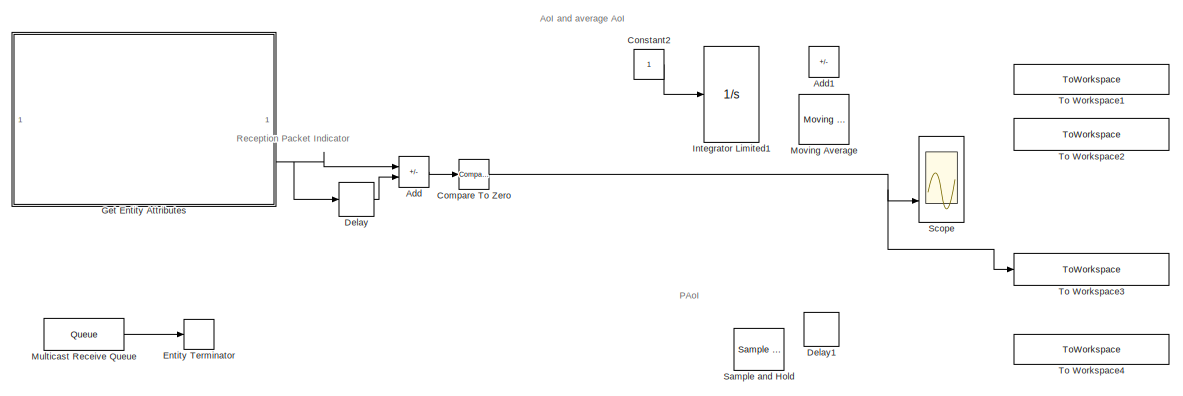
[diagram: root canvas - part 1/2, middle right region]
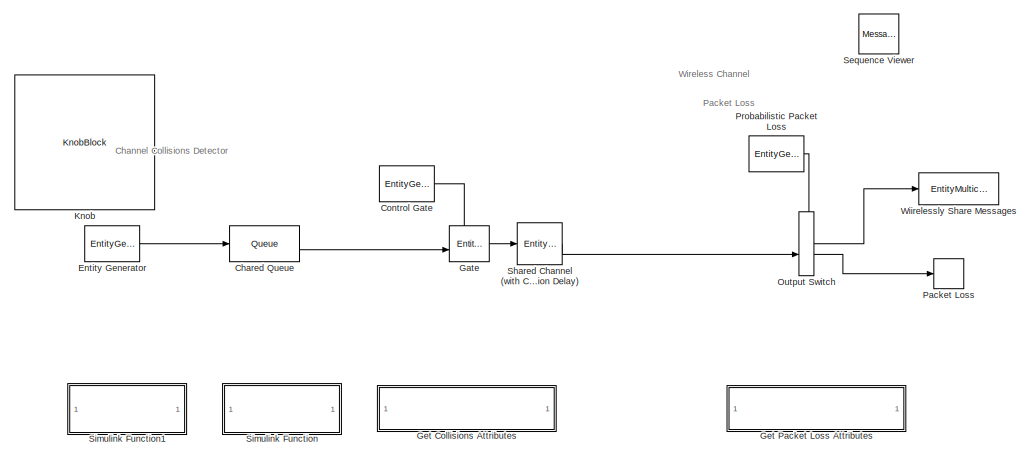
[diagram: root canvas - part 2/2, middle left region]
MODEL slx_b40120d1d837
KIND model
CONFIG AbsTol = auto
CONFIG EnableMultiTasking = off
CONFIG FixedStep = .001
CONFIG InitFcn = init_fcn
CONFIG MaxStep = auto
CONFIG MinStep = auto
CONFIG RelTol = 1e-3
CONFIG SampleTimeConstraint = Unconstrained
CONFIG SolverName = FixedStepAuto
CONFIG StartTime = 0.0
CONFIG StopFcn = stop_fcn
CONFIG StopTime = Inf
BLOCK [Sum] Add
  IconShape = rectangular
  Inputs = +-
BLOCK [Sum] Add1
  IconShape = rectangular
  Inputs = +-
BLOCK [Queue] Chared Queue
  Capacity = Inf
  InputPortMap = u0
  InputPortMessageModes = m
  OutputPortMap = o5
  OutputPortMessageModes = m
BLOCK [Reference] Compare To Zero  REF=simulink/Logic and Bit
Operations/Compare
To Zero
  SourceBlock = simulink/Logic and Bit\nOperations/Compare\nTo Zero
  SourceType = Compare To Zero
BLOCK [Constant] Constant2
BLOCK [EntityGenerator] Control Gate
  AttributeName = entity
  DataInitialValue = 1
  EntityTypeName = EntityGate
  GenerateAction = persistent gateControl;\nif isempty(gateControl)\n    gateControl = 1;\nend\nentity = gateControl;\ngateControl = 1-gateControl;\n\n%stamping each generated packet with the clock\ngetAttributeCollision(entity,timeStamp());
  IntergenerationTimeAction = % Current channel failure state \n% (true - failed, false - operational)\npersistent failure; \nif isempty(failure)\n    % Initial condition: channel is operational.\n    failure = false;\nend\n\nif failure\n    % Repair time is an uniformly distributed random\n    % variable between 1 and 2.\n    dt = randi([1 2],1,1);\nelse\n    % Duration between failures is a uniformly\n    % distributed random variable bet...<+91ch>
  OutputPortMap = o3
  OutputPortMessageModes = m
  Period = 0.2
  TimeSource = MATLAB action
BLOCK [Delay] Delay
  DelayLength = 1
  InputPortMap = u0
BLOCK [Delay] Delay1
  DelayLength = 1
  InputPortMap = u0
BLOCK [EntityGenerator] Entity Generator
  AttributeInitialValue = uint8(zeros(1,length(message)))|0|0|0|0
  AttributeName = Data|TimeStampGeneration|TimeStampServiceComplete|TotalTime|MessageID
  EntityType = Structured
  EntityTypeName = Entity
  GenerateAction = %stamping each generated packet with the clock\nentity.TimeStampGeneration = timeStamp();\n%stamping each generated packet with an ID\npersistent counter;\n\nif isempty(counter)\n    counter=1;\nend\n\nentity.MessageID=counter;\ncounter=counter+1;
  IntergenerationTimeAction = % dt = rand(1,1);\n%dt = randi([0 10],1,1);\n%dt=5;\ndt=1/EmissionRate();
  OutputPortMap = o3
  OutputPortMessageModes = m
  TimeSource = MATLAB action
BLOCK [EntityTerminator] Entity Terminator
  EntryAction = getAttribute(entity.Data',entity.MessageID,entity.TimeStampGeneration,timeStamp());
  InputPortMap = u0
  InputPortMessageModes = m
BLOCK [EntityGate] Gate
  InputPortMap = u0,u1
  InputPortMessageModes = m,m
  OpenGateAtSimulationStart = on
  OutputPortMap = o0
  OutputPortMessageModes = m
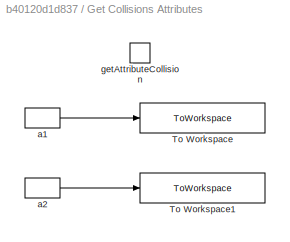
BLOCK [SubSystem] Get Collisions Attributes
  TreatAsAtomicUnit = on
BLOCK [ToWorkspace] Get Collisions Attributes/To Workspace
  FixptAsFi = on
  MaxDataPoints = inf
  SampleTime = -1
  SaveFormat = Timeseries
  VariableName = ControlGate
BLOCK [ToWorkspace] Get Collisions Attributes/To Workspace1
  FixptAsFi = on
  MaxDataPoints = inf
  SampleTime = -1
  SaveFormat = Timeseries
  VariableName = TimeStampGate
BLOCK [ArgIn] Get Collisions Attributes/a1
  ArgumentName = a1
BLOCK [ArgIn] Get Collisions Attributes/a2
  ArgumentName = a2
  Port = 2
BLOCK [TriggerPort] Get Collisions Attributes/getAttributeCollision
  FunctionName = getAttributeCollision
  IsSimulinkFunction = on
  StatesWhenEnabling = held
  TriggerType = function-call
  VariantControl = Variant
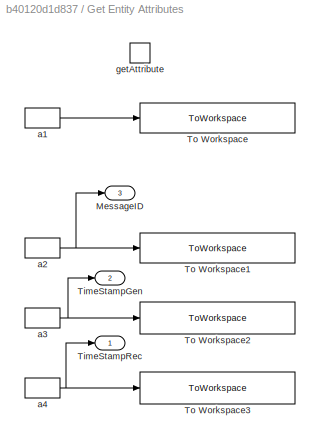
BLOCK [SubSystem] Get Entity Attributes
  NameLocation = top
  TreatAsAtomicUnit = on
BLOCK [Outport] Get Entity Attributes/MessageID
  Port = 3
BLOCK [Outport] Get Entity Attributes/TimeStampGen
  Port = 2
BLOCK [Outport] Get Entity Attributes/TimeStampRec
BLOCK [ToWorkspace] Get Entity Attributes/To Workspace
  FixptAsFi = on
  MaxDataPoints = inf
  SampleTime = -1
  SaveFormat = Timeseries
  VariableName = message_Rx
BLOCK [ToWorkspace] Get Entity Attributes/To Workspace1
  FixptAsFi = on
  MaxDataPoints = inf
  SampleTime = -1
  SaveFormat = Timeseries
  VariableName = MessageID
BLOCK [ToWorkspace] Get Entity Attributes/To Workspace2
  FixptAsFi = on
  MaxDataPoints = inf
  SampleTime = -1
  SaveFormat = Timeseries
  VariableName = TimeStampGeneration
BLOCK [ToWorkspace] Get Entity Attributes/To Workspace3
  FixptAsFi = on
  MaxDataPoints = inf
  SampleTime = -1
  SaveFormat = Timeseries
  VariableName = timeStampReceived
BLOCK [ArgIn] Get Entity Attributes/a1
  ArgumentName = a1
  OutDataTypeStr = uint8
  PortDimensions = 12
BLOCK [ArgIn] Get Entity Attributes/a2
  ArgumentName = a2
  Port = 2
BLOCK [ArgIn] Get Entity Attributes/a3
  ArgumentName = a3
  Port = 3
BLOCK [ArgIn] Get Entity Attributes/a4
  ArgumentName = a4
  Port = 4
BLOCK [TriggerPort] Get Entity Attributes/getAttribute
  FunctionName = getAttribute
  IsSimulinkFunction = on
  StatesWhenEnabling = held
  TriggerType = function-call
  VariantControl = Variant
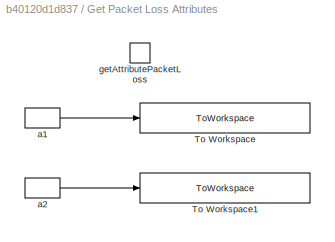
BLOCK [SubSystem] Get Packet Loss Attributes
  TreatAsAtomicUnit = on
BLOCK [ToWorkspace] Get Packet Loss Attributes/To Workspace
  FixptAsFi = on
  MaxDataPoints = inf
  SampleTime = -1
  SaveFormat = Timeseries
  VariableName = PacketLoss
BLOCK [ToWorkspace] Get Packet Loss Attributes/To Workspace1
  FixptAsFi = on
  MaxDataPoints = inf
  SampleTime = -1
  SaveFormat = Timeseries
  VariableName = TimeStampPacketLoss
BLOCK [ArgIn] Get Packet Loss Attributes/a1
  ArgumentName = a1
BLOCK [ArgIn] Get Packet Loss Attributes/a2
  ArgumentName = a2
  Port = 2
BLOCK [TriggerPort] Get Packet Loss Attributes/getAttributePacketLoss
  FunctionName = getAttributePacketLoss
  IsSimulinkFunction = on
  StatesWhenEnabling = held
  TriggerType = function-call
  VariantControl = Variant
BLOCK [Integrator] Integrator Limited1
  ExternalReset = rising
  InitialConditionSource = external
  LimitOutput = on
  LowerSaturationLimit = 0
  UpperSaturationLimit = 1000
BLOCK [KnobBlock] Knob
  ScaleMax = 0.999
  ScaleMin = 0.10000000000000001
BLOCK [Reference] Moving Average  REF=dspstat3/Moving
Average
  SourceBlock = dspstat3/Moving\nAverage
  SourceType = dsp.simulink.MovingAverage
BLOCK [Queue] Multicast Receive Queue
  EntityArrivalSource = Multicast
  MulticastTag = B
  OutputPortMap = o5
  OutputPortMessageModes = m
BLOCK [EntityOutputSwitch] Output Switch
  InputPortMap = u0,u1
  InputPortMessageModes = m,m
  OutputPortMap = o0,o1
  OutputPortMessageModes = m,m
  SwitchAttributeName = Attribute1
  SwitchingCriterion = From control port
BLOCK [EntityTerminator] Packet Loss
  InputPortMap = u0
  InputPortMessageModes = m
BLOCK [EntityGenerator] Probabilistic Packet Loss
  AttributeName = entity
  DataInitialValue = 1
  EntityTypeName = Entity
  GenerateAction = persistent rngInit;\n   if isempty(rngInit)\n       seed = 12345;\n       rng(seed);\n       rngInit = true;\n   end\n\n   % Pattern: Uniform distribution\n   % m: Minimum, M: Maximum\n   m = 0; M = 1;\n   x = m + (M - m) * rand;\n   % x is generated from uniform distribution and \n   % takes values between |0| and |1|.\n   if x > 0.1  \n      % Entity carries data |1| and this forces Output switch to select \n ...<+353ch>
  OutputPortMap = o3
  OutputPortMessageModes = m
BLOCK [Reference] Sample and Hold  REF=dspsigops/Sample
and Hold
  LibrarySourceBlock = dsphdlsupportsigops/Sample\nand Hold
  SourceBlock = dspsigops/Sample\nand Hold
  SourceType = Sample and Hold
BLOCK [Scope] Scope
  Floating = off
  NumInputPorts = 4
  ScopeSpecificationString = Simulink.scopes.TimeScopeBlockCfg('CurrentConfiguration', extmgr.ConfigurationSet(extmgr.Configuration('Core','General UI',true),extmgr.Configuration('Core','Source UI',true),extmgr.Configuration('Sources','WiredSimulink',true),extmgr.Configuration('Visuals','Time Domain',true,'SerializedDisplays',{struct('MinYLimReal','-6.58237','MaxYLimReal','69.23137','YLabelReal','','MinYLimMag','0.00000','Max...<+1551ch>
BLOCK [MessageViewer] Sequence Viewer
  History = 1000
  SavedRootId = #
BLOCK [EntityServer] Shared Channel (with Communication Delay)
  Capacity = 1
  InputPortMap = u2
  InputPortMessageModes = m
  OutputPortMap = o9
  OutputPortMessageModes = m
  ServiceTimeValue = 1
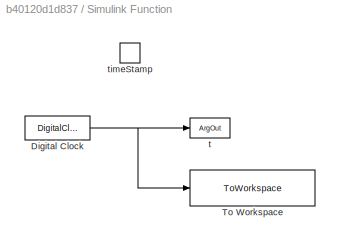
BLOCK [SubSystem] Simulink Function
  TreatAsAtomicUnit = on
BLOCK [DigitalClock] Simulink Function/Digital Clock
  SampleTime = -1
BLOCK [ToWorkspace] Simulink Function/To Workspace
  FixptAsFi = on
  MaxDataPoints = inf
  SampleTime = -1
  SaveFormat = Timeseries
  VariableName = SimulationClock
BLOCK [ArgOut] Simulink Function/t
  ArgumentName = t
  DisableCoverage = on
BLOCK [TriggerPort] Simulink Function/timeStamp
  FunctionName = timeStamp
  FunctionVisibility = scoped
  IsSimulinkFunction = on
  StatesWhenEnabling = held
  TriggerType = function-call
  VariantControl = (inherit)
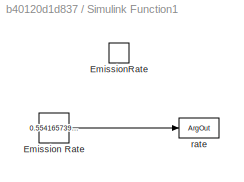
BLOCK [SubSystem] Simulink Function1
  TreatAsAtomicUnit = on
BLOCK [Constant] Simulink Function1/Emission Rate
  Value = 0.5541657390340169
BLOCK [TriggerPort] Simulink Function1/EmissionRate
  FunctionName = EmissionRate
  FunctionVisibility = scoped
  IsSimulinkFunction = on
  StatesWhenEnabling = held
  TriggerType = function-call
  VariantControl = (inherit)
BLOCK [ArgOut] Simulink Function1/rate
  ArgumentName = rate
  DisableCoverage = on
BLOCK [ToWorkspace] To Workspace1
  FixptAsFi = on
  MaxDataPoints = inf
  SampleTime = -1
  SaveFormat = Timeseries
  VariableName = AoI
BLOCK [ToWorkspace] To Workspace2
  FixptAsFi = on
  MaxDataPoints = inf
  SampleTime = -1
  SaveFormat = Timeseries
  VariableName = averageAoI
BLOCK [ToWorkspace] To Workspace3
  FixptAsFi = on
  MaxDataPoints = inf
  SampleTime = -1
  SaveFormat = Timeseries
  VariableName = packetIndicator
BLOCK [ToWorkspace] To Workspace4
  FixptAsFi = on
  MaxDataPoints = inf
  SampleTime = -1
  SaveFormat = Timeseries
  VariableName = PAoI
BLOCK [EntityMulticast] Wiirelessly Share Messages
  InputPortMessageModes = m
  MulticastTag = B
ANNOTATION (root): AoI and average AoI
ANNOTATION (root): Channel Collisions Detector
ANNOTATION (root): PAoI
ANNOTATION (root): Packet Loss
ANNOTATION (root): Reception Packet Indicator
ANNOTATION (root): Wireless Channel
LINE Add:1 -> Compare To Zero:1
LINE Chared Queue:1 -> Gate:2
NET Compare To Zero:1 -> Scope:3, To Workspace3:1
LINE Constant2:1 -> Integrator Limited1:1
LINE Control Gate:1 -> Gate:1
LINE Delay:1 -> Add:2
LINE Entity Generator:1 -> Chared Queue:1
LINE Gate:1 -> Shared Channel (with Communication Delay):1
LINE Get Collisions Attributes/a1:1 -> Get Collisions Attributes/To Workspace:1
LINE Get Collisions Attributes/a2:1 -> Get Collisions Attributes/To Workspace1:1
LINE Get Entity Attributes/a1:1 -> Get Entity Attributes/To Workspace:1
NET Get Entity Attributes/a2:1 -> Get Entity Attributes/MessageID:1, Get Entity Attributes/To Workspace1:1
NET Get Entity Attributes/a3:1 -> Get Entity Attributes/TimeStampGen:1, Get Entity Attributes/To Workspace2:1
NET Get Entity Attributes/a4:1 -> Get Entity Attributes/TimeStampRec:1, Get Entity Attributes/To Workspace3:1
NET Get Entity Attributes:3 -> Add:1, Delay:1
LINE Get Packet Loss Attributes/a1:1 -> Get Packet Loss Attributes/To Workspace:1
LINE Get Packet Loss Attributes/a2:1 -> Get Packet Loss Attributes/To Workspace1:1
LINE Multicast Receive Queue:1 -> Entity Terminator:1
LINE Output Switch:1 -> Wiirelessly Share Messages:1
LINE Output Switch:2 -> Packet Loss:1
LINE Probabilistic Packet Loss:1 -> Output Switch:1
LINE Shared Channel (with Communication Delay):1 -> Output Switch:2
NET Simulink Function/Digital Clock:1 -> Simulink Function/To Workspace:1, Simulink Function/t:1
LINE Simulink Function1/Emission Rate:1 -> Simulink Function1/rate:1
note: NET lines group one-source signal fan-out (src -> all destinations, sorted); 1:1 wires keep LINE
